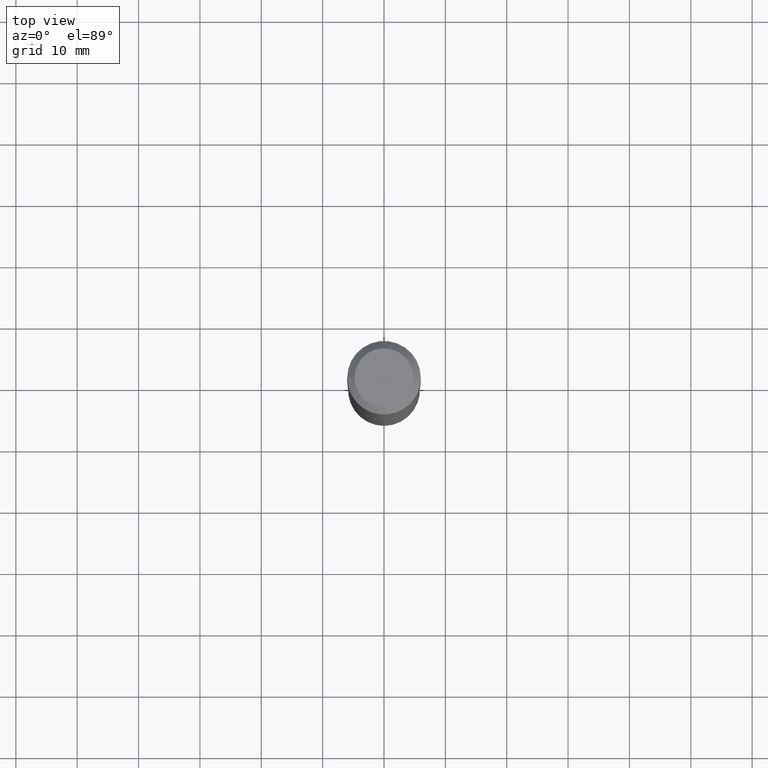
[diagram: clean part render]
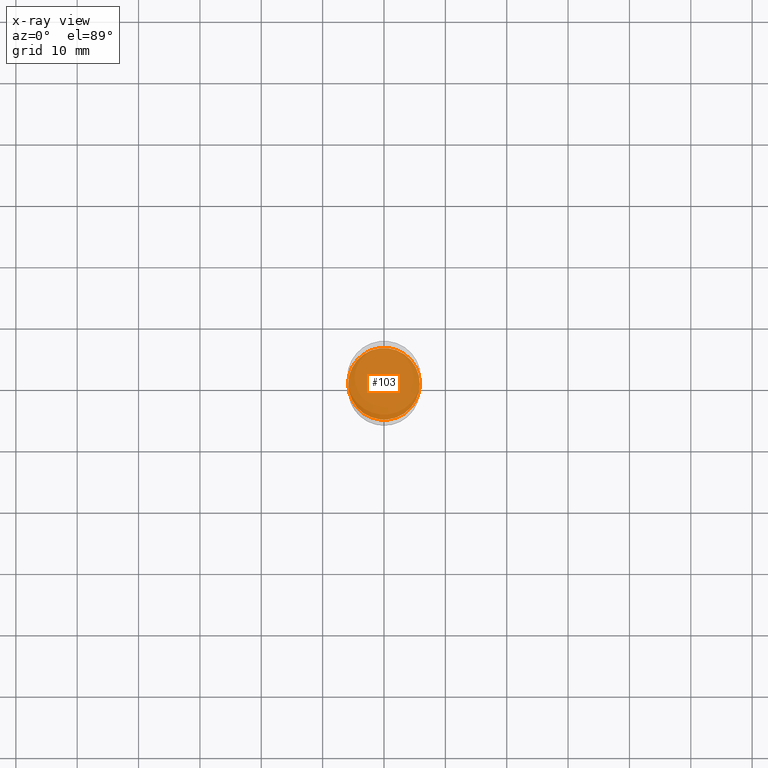
[diagram: x-ray — body ghosted, one internal face saturated and labeled with its STEP entity id]
A machine part, top view, then the same camera in x-ray: the body is ghosted and one INTERNAL B-rep face — a face not visible from any outside direction — is saturated and labeled: STEP entity #103.
In plain terms, the highlighted planar face has unit normal (-0, 0, 1).
Its self-contained STEP definition (entity closure, byte-faithful):
#24 = VERTEX_POINT ( 'NONE', #237 ) ;
#30 = DIRECTION ( 'NONE',  ( 1.000000000000000000, -6.982962677686267499E-15, 0.000000000000000000 ) ) ;
#41 = VERTEX_POINT ( 'NONE', #266 ) ;
#64 = EDGE_LOOP ( 'NONE', ( #262, #98 ) ) ;
#65 = CARTESIAN_POINT ( 'NONE',  ( 5.651478411093848855E-29, -8.068813374066508195E-15, -2.310999999999999499 ) ) ;
#68 = CIRCLE ( 'NONE', #102, 0.2298000000000000043 ) ;
#90 = DIRECTION ( 'NONE',  ( 1.000000000000000000, -6.982962677686265922E-15, 4.876176775795935793E-29 ) ) ;
#97 = FACE_OUTER_BOUND ( 'NONE', #64, .T. ) ;
#98 = ORIENTED_EDGE ( 'NONE', *, *, #350, .F. ) ;
#102 = AXIS2_PLACEMENT_3D ( 'NONE', #484, #409, #30 ) ;
#103 = ADVANCED_FACE ( 'NONE', ( #97 ), #278, .F. ) ;
#148 = CIRCLE ( 'NONE', #383, 0.2298000000000000043 ) ;
#151 = DIRECTION ( 'NONE',  ( 1.000000000000000000, -6.982962677686267499E-15, 0.000000000000000000 ) ) ;
#201 = CARTESIAN_POINT ( 'NONE',  ( 5.651478411093848855E-29, -8.068813374066508195E-15, -2.310999999999999499 ) ) ;
#237 = CARTESIAN_POINT ( 'NONE',  ( 0.2298000000000000043, -9.673498197398812651E-15, -2.310999999999999499 ) ) ;
#245 = DIRECTION ( 'NONE',  ( -2.438088387897960049E-29, 3.491481338843145188E-15, 1.000000000000000000 ) ) ;
#262 = ORIENTED_EDGE ( 'NONE', *, *, #455, .F. ) ;
#266 = CARTESIAN_POINT ( 'NONE',  ( -0.2298000000000000043, -6.433336940115686736E-15, -2.310999999999999499 ) ) ;
#278 = PLANE ( 'NONE',  #348 ) ;
#348 = AXIS2_PLACEMENT_3D ( 'NONE', #201, #245, #90 ) ;
#350 = EDGE_CURVE ( 'NONE', #41, #24, #148, .T. ) ;
#383 = AXIS2_PLACEMENT_3D ( 'NONE', #65, #480, #151 ) ;
#409 = DIRECTION ( 'NONE',  ( -2.445468806185136597E-29, 3.491481338843145583E-15, 1.000000000000000000 ) ) ;
#455 = EDGE_CURVE ( 'NONE', #24, #41, #68, .T. ) ;
#480 = DIRECTION ( 'NONE',  ( -2.445468806185136597E-29, 3.491481338843145583E-15, 1.000000000000000000 ) ) ;
#484 = CARTESIAN_POINT ( 'NONE',  ( 5.651478411093848855E-29, -8.068813374066508195E-15, -2.310999999999999499 ) ) ;